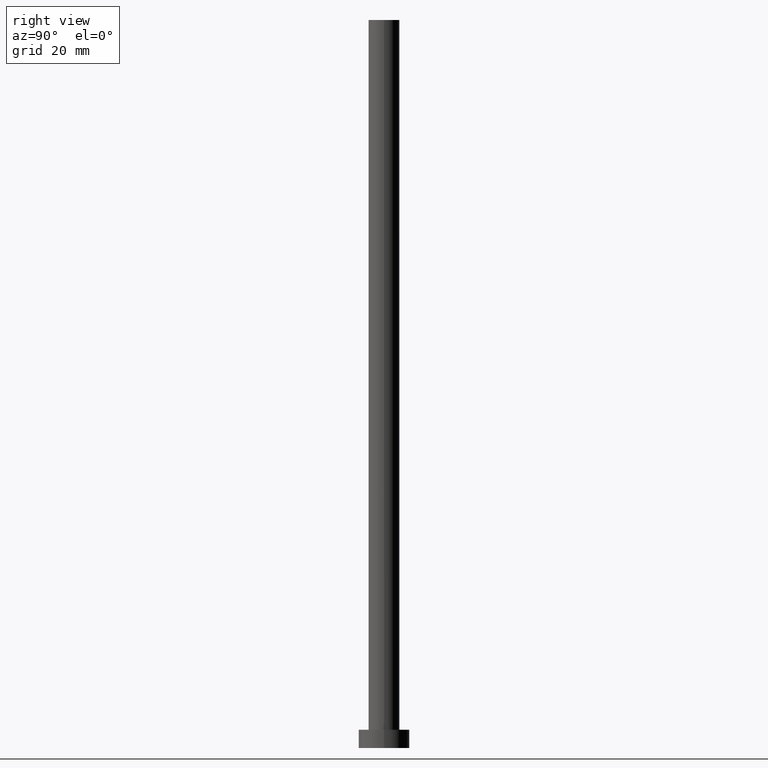
[diagram: clean part render]
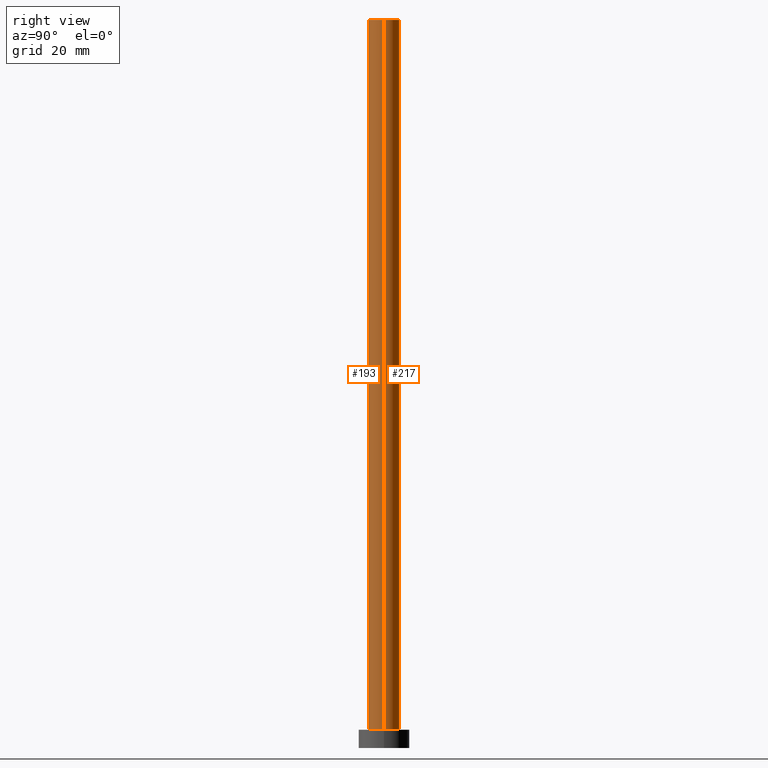
[diagram: same view with one multi-face feature highlighted, each face labeled with its STEP entity id]
A machine part, right view. The highlighted faces form ONE feature: a constant-radius fillet chain: 2 tangent blend faces with common blend radius 4.25 mm. The faces share edges in the B-rep.
Their STEP definitions:
[1] entity #217 (Cylinder):
#2 = CIRCLE ( 'NONE', #145, 4.250000000000000000 ) ;
#5 = LINE ( 'NONE', #56, #81 ) ;
#19 = CARTESIAN_POINT ( 'NONE',  ( 4.250000000000000000, 5.204748896376250699E-16, 5.000000000000000000 ) ) ;
#23 = CARTESIAN_POINT ( 'NONE',  ( 0.000000000000000000, 0.000000000000000000, 200.0000000000000000 ) ) ;
#26 = EDGE_CURVE ( 'NONE', #63, #42, #250, .T. ) ;
#38 = DIRECTION ( 'NONE',  ( 0.000000000000000000, 0.000000000000000000, 1.000000000000000000 ) ) ;
#42 = VERTEX_POINT ( 'NONE', #156 ) ;
#47 = ORIENTED_EDGE ( 'NONE', *, *, #119, .T. ) ;
#56 = CARTESIAN_POINT ( 'NONE',  ( -4.250000000000000000, 0.000000000000000000, 200.0000000000000000 ) ) ;
#58 = CYLINDRICAL_SURFACE ( 'NONE', #233, 4.250000000000000000 ) ;
#61 = EDGE_LOOP ( 'NONE', ( #111, #83, #47, #225 ) ) ;
#63 = VERTEX_POINT ( 'NONE', #251 ) ;
#67 = VERTEX_POINT ( 'NONE', #19 ) ;
#79 = EDGE_CURVE ( 'NONE', #63, #67, #255, .T. ) ;
#81 = VECTOR ( 'NONE', #163, 1000.000000000000000 ) ;
#83 = ORIENTED_EDGE ( 'NONE', *, *, #79, .T. ) ;
#84 = DIRECTION ( 'NONE',  ( 0.000000000000000000, 0.000000000000000000, 1.000000000000000000 ) ) ;
#108 = CARTESIAN_POINT ( 'NONE',  ( 0.000000000000000000, 0.000000000000000000, 200.0000000000000000 ) ) ;
#111 = ORIENTED_EDGE ( 'NONE', *, *, #26, .F. ) ;
#118 = CARTESIAN_POINT ( 'NONE',  ( 0.000000000000000000, 0.000000000000000000, 5.000000000000000000 ) ) ;
#119 = EDGE_CURVE ( 'NONE', #67, #153, #2, .T. ) ;
#125 = AXIS2_PLACEMENT_3D ( 'NONE', #108, #84, #171 ) ;
#145 = AXIS2_PLACEMENT_3D ( 'NONE', #118, #38, #222 ) ;
#153 = VERTEX_POINT ( 'NONE', #202 ) ;
#155 = DIRECTION ( 'NONE',  ( -0.000000000000000000, -0.000000000000000000, -1.000000000000000000 ) ) ;
#156 = CARTESIAN_POINT ( 'NONE',  ( -4.250000000000000000, 0.000000000000000000, 200.0000000000000000 ) ) ;
#163 = DIRECTION ( 'NONE',  ( -0.000000000000000000, -0.000000000000000000, -1.000000000000000000 ) ) ;
#171 = DIRECTION ( 'NONE',  ( 1.000000000000000000, 0.000000000000000000, 0.000000000000000000 ) ) ;
#185 = DIRECTION ( 'NONE',  ( -0.000000000000000000, -0.000000000000000000, -1.000000000000000000 ) ) ;
#202 = CARTESIAN_POINT ( 'NONE',  ( -4.250000000000000000, 0.000000000000000000, 5.000000000000000000 ) ) ;
#203 = FACE_OUTER_BOUND ( 'NONE', #61, .T. ) ;
#204 = DIRECTION ( 'NONE',  ( -1.000000000000000000, 0.000000000000000000, 0.000000000000000000 ) ) ;
#217 = ADVANCED_FACE ( 'NONE', ( #203 ), #58, .T. ) ;
#222 = DIRECTION ( 'NONE',  ( 1.000000000000000000, 0.000000000000000000, 0.000000000000000000 ) ) ;
#223 = VECTOR ( 'NONE', #155, 1000.000000000000000 ) ;
#225 = ORIENTED_EDGE ( 'NONE', *, *, #237, .F. ) ;
#233 = AXIS2_PLACEMENT_3D ( 'NONE', #23, #185, #204 ) ;
#236 = CARTESIAN_POINT ( 'NONE',  ( 4.250000000000000000, 5.204748896376250699E-16, 200.0000000000000000 ) ) ;
#237 = EDGE_CURVE ( 'NONE', #42, #153, #5, .T. ) ;
#250 = CIRCLE ( 'NONE', #125, 4.250000000000000000 ) ;
#251 = CARTESIAN_POINT ( 'NONE',  ( 4.250000000000000000, 5.204748896376250699E-16, 200.0000000000000000 ) ) ;
#255 = LINE ( 'NONE', #236, #223 ) ;
[2] entity #193 (Cylinder):
#5 = LINE ( 'NONE', #56, #81 ) ;
#8 = DIRECTION ( 'NONE',  ( 0.000000000000000000, 0.000000000000000000, 1.000000000000000000 ) ) ;
#12 = ORIENTED_EDGE ( 'NONE', *, *, #79, .F. ) ;
#19 = CARTESIAN_POINT ( 'NONE',  ( 4.250000000000000000, 5.204748896376250699E-16, 5.000000000000000000 ) ) ;
#42 = VERTEX_POINT ( 'NONE', #156 ) ;
#50 = DIRECTION ( 'NONE',  ( 0.000000000000000000, 0.000000000000000000, 1.000000000000000000 ) ) ;
#53 = AXIS2_PLACEMENT_3D ( 'NONE', #253, #50, #137 ) ;
#54 = CARTESIAN_POINT ( 'NONE',  ( 0.000000000000000000, 0.000000000000000000, 200.0000000000000000 ) ) ;
#56 = CARTESIAN_POINT ( 'NONE',  ( -4.250000000000000000, 0.000000000000000000, 200.0000000000000000 ) ) ;
#63 = VERTEX_POINT ( 'NONE', #251 ) ;
#67 = VERTEX_POINT ( 'NONE', #19 ) ;
#69 = ORIENTED_EDGE ( 'NONE', *, *, #170, .T. ) ;
#79 = EDGE_CURVE ( 'NONE', #63, #67, #255, .T. ) ;
#80 = DIRECTION ( 'NONE',  ( -1.000000000000000000, 0.000000000000000000, 0.000000000000000000 ) ) ;
#81 = VECTOR ( 'NONE', #163, 1000.000000000000000 ) ;
#91 = EDGE_CURVE ( 'NONE', #42, #63, #243, .T. ) ;
#95 = DIRECTION ( 'NONE',  ( 1.000000000000000000, 0.000000000000000000, 0.000000000000000000 ) ) ;
#124 = DIRECTION ( 'NONE',  ( -0.000000000000000000, -0.000000000000000000, -1.000000000000000000 ) ) ;
#127 = AXIS2_PLACEMENT_3D ( 'NONE', #183, #8, #95 ) ;
#134 = EDGE_LOOP ( 'NONE', ( #12, #205, #168, #69 ) ) ;
#137 = DIRECTION ( 'NONE',  ( 1.000000000000000000, 0.000000000000000000, 0.000000000000000000 ) ) ;
#144 = FACE_OUTER_BOUND ( 'NONE', #134, .T. ) ;
#153 = VERTEX_POINT ( 'NONE', #202 ) ;
#155 = DIRECTION ( 'NONE',  ( -0.000000000000000000, -0.000000000000000000, -1.000000000000000000 ) ) ;
#156 = CARTESIAN_POINT ( 'NONE',  ( -4.250000000000000000, 0.000000000000000000, 200.0000000000000000 ) ) ;
#163 = DIRECTION ( 'NONE',  ( -0.000000000000000000, -0.000000000000000000, -1.000000000000000000 ) ) ;
#168 = ORIENTED_EDGE ( 'NONE', *, *, #237, .T. ) ;
#170 = EDGE_CURVE ( 'NONE', #153, #67, #242, .T. ) ;
#173 = AXIS2_PLACEMENT_3D ( 'NONE', #54, #124, #80 ) ;
#183 = CARTESIAN_POINT ( 'NONE',  ( 0.000000000000000000, 0.000000000000000000, 5.000000000000000000 ) ) ;
#186 = CYLINDRICAL_SURFACE ( 'NONE', #173, 4.250000000000000000 ) ;
#193 = ADVANCED_FACE ( 'NONE', ( #144 ), #186, .T. ) ;
#202 = CARTESIAN_POINT ( 'NONE',  ( -4.250000000000000000, 0.000000000000000000, 5.000000000000000000 ) ) ;
#205 = ORIENTED_EDGE ( 'NONE', *, *, #91, .F. ) ;
#223 = VECTOR ( 'NONE', #155, 1000.000000000000000 ) ;
#236 = CARTESIAN_POINT ( 'NONE',  ( 4.250000000000000000, 5.204748896376250699E-16, 200.0000000000000000 ) ) ;
#237 = EDGE_CURVE ( 'NONE', #42, #153, #5, .T. ) ;
#242 = CIRCLE ( 'NONE', #127, 4.250000000000000000 ) ;
#243 = CIRCLE ( 'NONE', #53, 4.250000000000000000 ) ;
#251 = CARTESIAN_POINT ( 'NONE',  ( 4.250000000000000000, 5.204748896376250699E-16, 200.0000000000000000 ) ) ;
#253 = CARTESIAN_POINT ( 'NONE',  ( 0.000000000000000000, 0.000000000000000000, 200.0000000000000000 ) ) ;
#255 = LINE ( 'NONE', #236, #223 ) ;